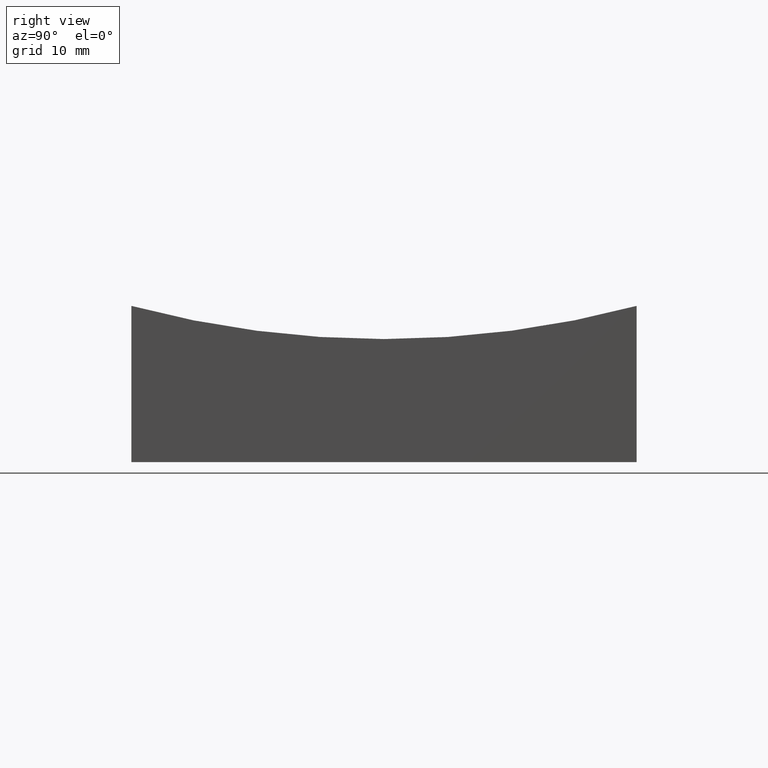
[diagram: clean part render]
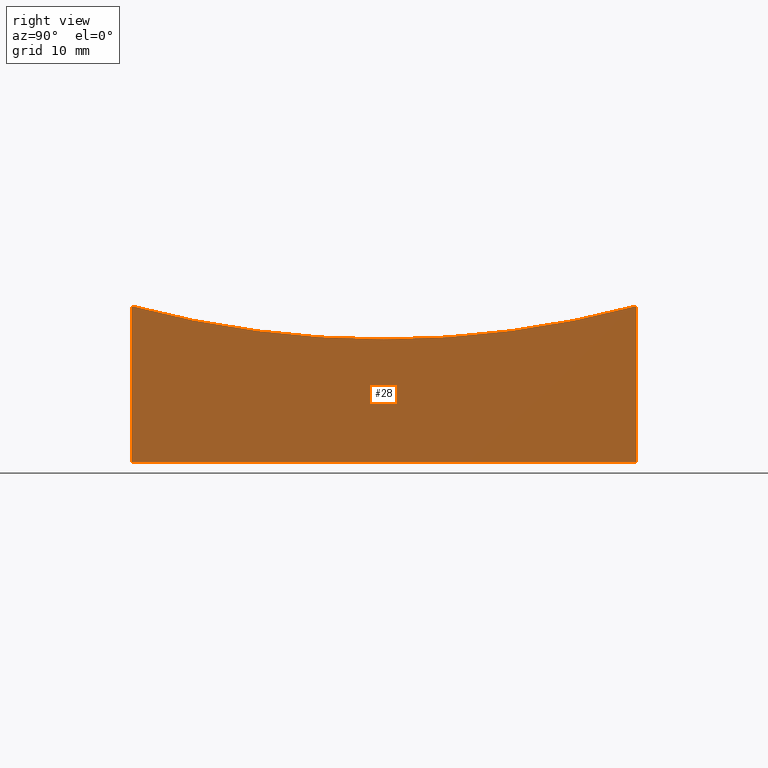
[diagram: same view with one face highlighted and labeled with its STEP entity id]
A machine part, right view. The second image highlights one B-rep face of the part: STEP entity #28.
In plain terms, the highlighted planar face has unit normal (1, 0, -0).
Its self-contained STEP definition (entity closure, byte-faithful):
#1 = DIRECTION ( 'NONE',  ( 1.000000000000000000, 6.938893903907228378E-17, -0.0000000000000000000 ) ) ;
#14 = EDGE_LOOP ( 'NONE', ( #209, #251, #94, #20, #68 ) ) ;
#15 = CIRCLE ( 'NONE', #99, 96.82458365518536425 ) ;
#19 = AXIS2_PLACEMENT_3D ( 'NONE', #121, #141, #199 ) ;
#20 = ORIENTED_EDGE ( 'NONE', *, *, #175, .F. ) ;
#22 = CARTESIAN_POINT ( 'NONE',  ( 24.99999999999999645, 1.734723475976805911E-15, 108.9999999999999858 ) ) ;
#23 = CARTESIAN_POINT ( 'NONE',  ( 24.99999999999999645, 24.99999999999999645, 0.0000000000000000000 ) ) ;
#28 = ADVANCED_FACE ( 'NONE', ( #102 ), #232, .T. ) ;
#40 = CARTESIAN_POINT ( 'NONE',  ( 24.99999999999999645, 24.99999999999999645, 15.45856533065151339 ) ) ;
#41 = CARTESIAN_POINT ( 'NONE',  ( 25.00000000000000000, -25.00000000000000711, 50.00000000000000000 ) ) ;
#45 = DIRECTION ( 'NONE',  ( -0.0000000000000000000, -0.0000000000000000000, -1.000000000000000000 ) ) ;
#53 = VECTOR ( 'NONE', #45, 1000.000000000000000 ) ;
#64 = DIRECTION ( 'NONE',  ( -7.166458808248768397E-17, 1.000000000000000000, 0.0000000000000000000 ) ) ;
#65 = DIRECTION ( 'NONE',  ( -0.0000000000000000000, -0.0000000000000000000, -1.000000000000000000 ) ) ;
#68 = ORIENTED_EDGE ( 'NONE', *, *, #126, .F. ) ;
#71 = VERTEX_POINT ( 'NONE', #198 ) ;
#94 = ORIENTED_EDGE ( 'NONE', *, *, #96, .F. ) ;
#96 = EDGE_CURVE ( 'NONE', #130, #194, #242, .T. ) ;
#99 = AXIS2_PLACEMENT_3D ( 'NONE', #22, #138, #64 ) ;
#102 = FACE_OUTER_BOUND ( 'NONE', #14, .T. ) ;
#105 = CARTESIAN_POINT ( 'NONE',  ( 24.99999999999999645, 24.99999999999999645, 50.00000000000000000 ) ) ;
#117 = DIRECTION ( 'NONE',  ( -6.938893903907228378E-17, 1.000000000000000000, 0.0000000000000000000 ) ) ;
#121 = CARTESIAN_POINT ( 'NONE',  ( 24.99999999999999645, 1.734723475976805911E-15, 108.9999999999999858 ) ) ;
#124 = LINE ( 'NONE', #105, #204 ) ;
#126 = EDGE_CURVE ( 'NONE', #71, #166, #15, .T. ) ;
#127 = CIRCLE ( 'NONE', #19, 96.82458365518536425 ) ;
#130 = VERTEX_POINT ( 'NONE', #23 ) ;
#132 = VECTOR ( 'NONE', #243, 1000.000000000000000 ) ;
#138 = DIRECTION ( 'NONE',  ( 1.000000000000000000, 6.938893903907228378E-17, -0.0000000000000000000 ) ) ;
#141 = DIRECTION ( 'NONE',  ( 1.000000000000000000, 6.938893903907228378E-17, -0.0000000000000000000 ) ) ;
#166 = VERTEX_POINT ( 'NONE', #40 ) ;
#167 = AXIS2_PLACEMENT_3D ( 'NONE', #196, #1, #117 ) ;
#171 = EDGE_CURVE ( 'NONE', #176, #194, #220, .T. ) ;
#175 = EDGE_CURVE ( 'NONE', #166, #130, #124, .T. ) ;
#176 = VERTEX_POINT ( 'NONE', #202 ) ;
#180 = CARTESIAN_POINT ( 'NONE',  ( 25.00000000000000000, -25.00000000000000711, 0.0000000000000000000 ) ) ;
#184 = CARTESIAN_POINT ( 'NONE',  ( 24.99999999999999645, 24.99999999999999645, 0.0000000000000000000 ) ) ;
#193 = EDGE_CURVE ( 'NONE', #176, #71, #127, .T. ) ;
#194 = VERTEX_POINT ( 'NONE', #180 ) ;
#196 = CARTESIAN_POINT ( 'NONE',  ( 24.99999999999999645, 24.99999999999999645, 50.00000000000000000 ) ) ;
#198 = CARTESIAN_POINT ( 'NONE',  ( 24.99999999999999289, -9.629649721936179265E-32, 12.17541634481461621 ) ) ;
#199 = DIRECTION ( 'NONE',  ( -7.166458808248768397E-17, 1.000000000000000000, 0.0000000000000000000 ) ) ;
#202 = CARTESIAN_POINT ( 'NONE',  ( 25.00000000000000000, -25.00000000000000711, 15.45856533065151339 ) ) ;
#204 = VECTOR ( 'NONE', #65, 1000.000000000000000 ) ;
#209 = ORIENTED_EDGE ( 'NONE', *, *, #193, .F. ) ;
#220 = LINE ( 'NONE', #41, #53 ) ;
#232 = PLANE ( 'NONE',  #167 ) ;
#242 = LINE ( 'NONE', #184, #132 ) ;
#243 = DIRECTION ( 'NONE',  ( 6.938893903907228378E-17, -1.000000000000000000, 0.0000000000000000000 ) ) ;
#251 = ORIENTED_EDGE ( 'NONE', *, *, #171, .T. ) ;